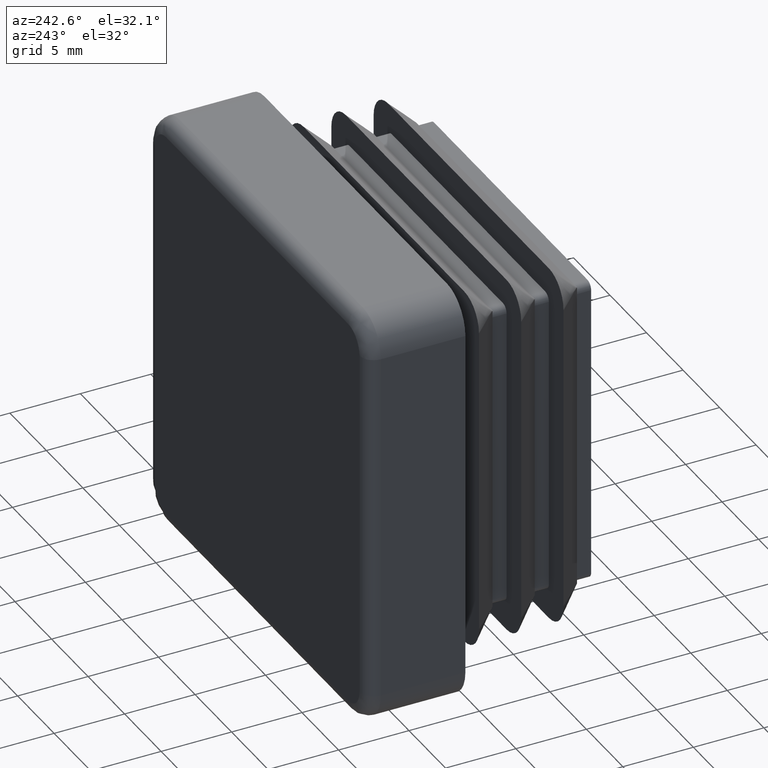
[diagram: clean part render]
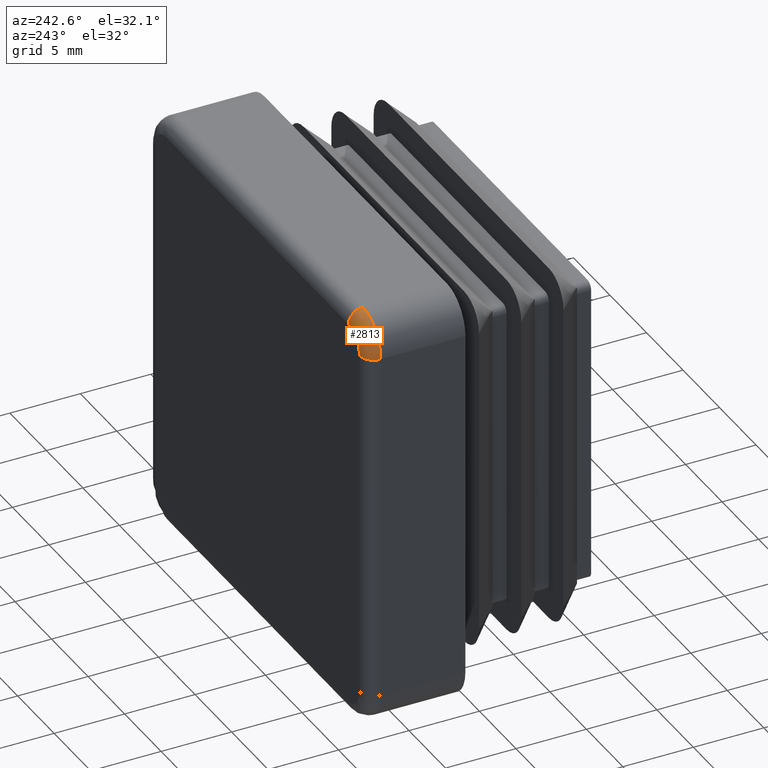
[diagram: same view with one face highlighted and labeled with its STEP entity id]
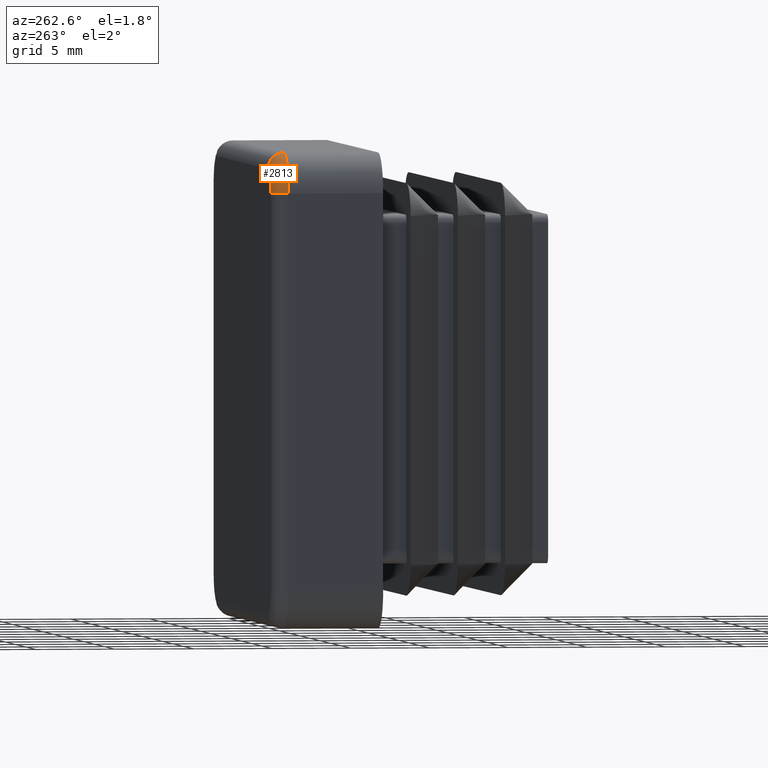
[diagram: same view with one face highlighted and labeled with its STEP entity id]
A machine part, auxiliary view. The second image highlights one B-rep face of the part: STEP entity #2813.
A second angle (auxiliary view) of the same face is appended — the face is thin or edge-on in the first view.
In plain terms, the highlighted face is a freeform B-spline surface patch.
Its self-contained STEP definition (entity closure, byte-faithful):
#1900=CARTESIAN_POINT('',(-13.999999999999995,18.0,12.499999999999982));
#1901=VERTEX_POINT('',#1900);
#1908=CARTESIAN_POINT('',(-12.499999999999980,18.0,13.999999999999995));
#1909=VERTEX_POINT('',#1908);
#1910=CARTESIAN_POINT('',(-12.499999999999996,18.0,12.499999999999996));
#1911=DIRECTION('',(0.0,1.0,0.0));
#1912=DIRECTION('',(0.0,0.0,-1.0));
#1913=AXIS2_PLACEMENT_3D('',#1910,#1911,#1912);
#1914=CIRCLE('',#1913,1.500000000000000);
#1915=EDGE_CURVE('',#1901,#1909,#1914,.T.);
#1965=CARTESIAN_POINT('',(-12.499999999999980,16.999999999999993,15.0));
#1966=VERTEX_POINT('',#1965);
#1975=CARTESIAN_POINT('',(-14.999999999999995,16.999999999999993,12.499999999999982));
#1976=VERTEX_POINT('',#1975);
#1977=CARTESIAN_POINT('',(-12.499999999999996,16.999999999999993,12.499999999999996));
#1978=DIRECTION('',(0.0,-1.0,0.0));
#1979=DIRECTION('',(0.0,0.0,-1.0));
#1980=AXIS2_PLACEMENT_3D('',#1977,#1978,#1979);
#1981=CIRCLE('',#1980,2.500000000000001);
#1982=EDGE_CURVE('',#1966,#1976,#1981,.T.);
#2737=CARTESIAN_POINT('',(-12.499999999999980,16.999999999999993,13.999999999999995));
#2738=DIRECTION('',(-1.0,0.0,0.0));
#2739=DIRECTION('',(0.0,0.0,1.0));
#2740=AXIS2_PLACEMENT_3D('',#2737,#2738,#2739);
#2741=CIRCLE('',#2740,1.000000000000001);
#2742=EDGE_CURVE('',#1966,#1909,#2741,.T.);
#2784=CARTESIAN_POINT('',(-13.999999943431451,17.999999999999996,12.499999915147177));
#2785=CARTESIAN_POINT('',(-15.000000056568537,17.999999999999993,12.499999858578621));
#2786=CARTESIAN_POINT('',(-14.999999999999989,16.999999943431447,12.499999858578622));
#2787=CARTESIAN_POINT('',(-13.999999943431449,17.999999999999993,13.999999943431449));
#2788=CARTESIAN_POINT('',(-15.000000056568542,17.999999999999993,15.000000056568542));
#2789=CARTESIAN_POINT('',(-14.999999999999993,16.999999943431447,14.999999999999993));
#2790=CARTESIAN_POINT('',(-12.499999915147169,17.999999999999989,13.999999943431451));
#2791=CARTESIAN_POINT('',(-12.499999858578610,17.999999999999996,15.000000056568540));
#2792=CARTESIAN_POINT('',(-12.499999858578608,16.999999943431447,14.999999999999991));
#2800=(BOUNDED_SURFACE()B_SPLINE_SURFACE(2,2,((#2784,#2787,#2790),(#2785,#2788,#2791),(#2786,#2789,#2792)),.UNSPECIFIED.,.F.,.F.,.U.)B_SPLINE_SURFACE_WITH_KNOTS((3,3),(3,3),(0.749999990000000,1.000000010000000),(0.249999989999999,0.500000010000002),.UNSPECIFIED.)GEOMETRIC_REPRESENTATION_ITEM()RATIONAL_B_SPLINE_SURFACE(((0.999999953137084,0.707106764618005,0.999999953137082),(0.707106752902275,0.499999991715729,0.707106752902274),(0.999999999999999,0.707106797755091,0.999999999999997)))REPRESENTATION_ITEM('')SURFACE());
#2801=ORIENTED_EDGE('',*,*,#2742,.T.);
#2802=ORIENTED_EDGE('',*,*,#1915,.F.);
#2803=CARTESIAN_POINT('',(-13.999999999999995,16.999999999999993,12.499999999999986));
#2804=DIRECTION('',(0.0,0.0,-1.0));
#2805=DIRECTION('',(-1.0,0.0,0.0));
#2806=AXIS2_PLACEMENT_3D('',#2803,#2804,#2805);
#2807=CIRCLE('',#2806,1.000000000000001);
#2808=EDGE_CURVE('',#1976,#1901,#2807,.T.);
#2809=ORIENTED_EDGE('',*,*,#2808,.F.);
#2810=ORIENTED_EDGE('',*,*,#1982,.F.);
#2811=EDGE_LOOP('',(#2801,#2802,#2809,#2810));
#2812=FACE_OUTER_BOUND('',#2811,.T.);
#2813=ADVANCED_FACE('',(#2812),#2800,.T.);